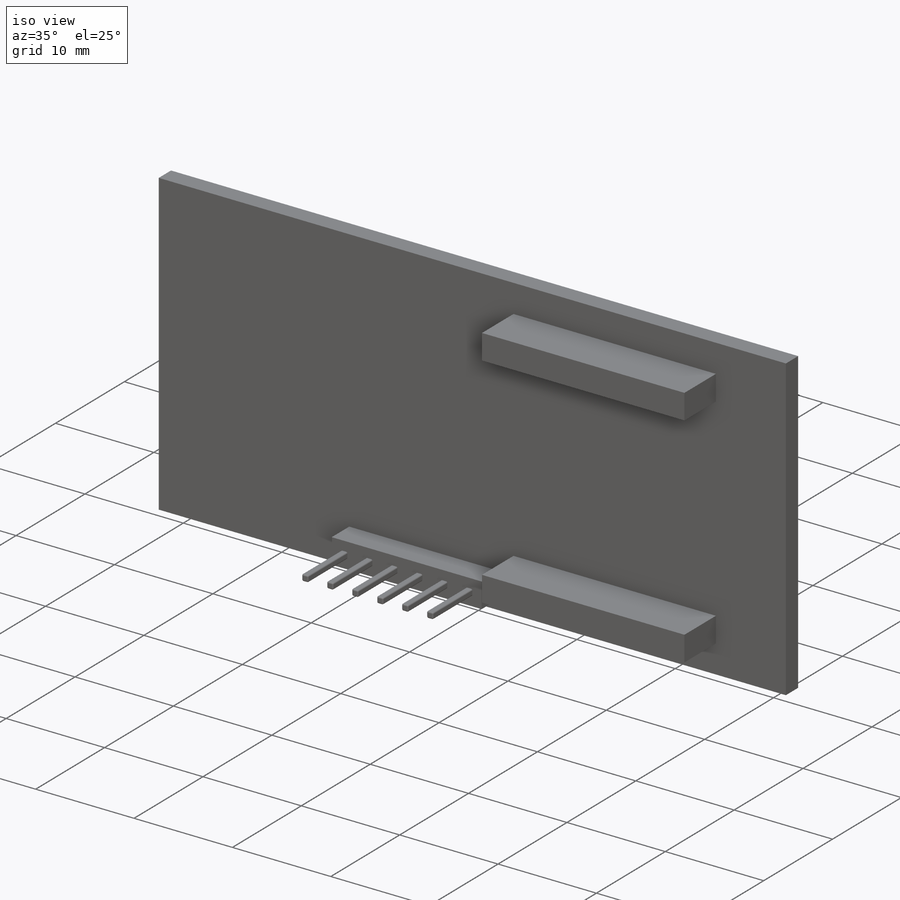
[diagram: iso view]
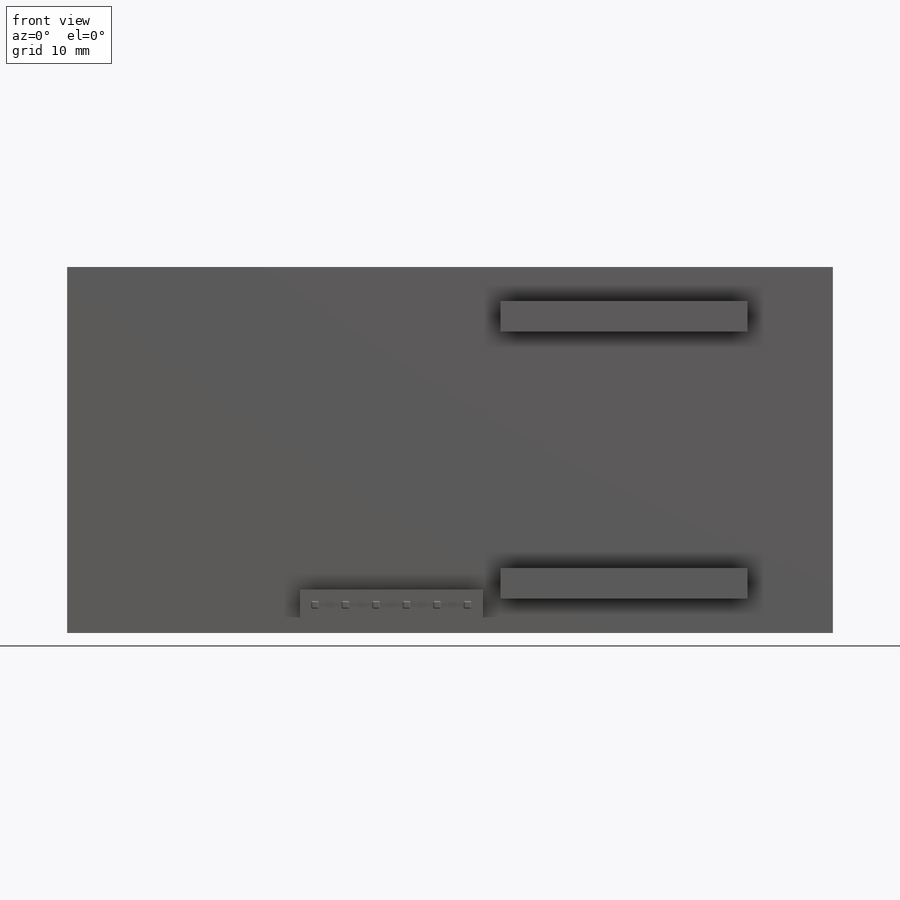
[diagram: front view]
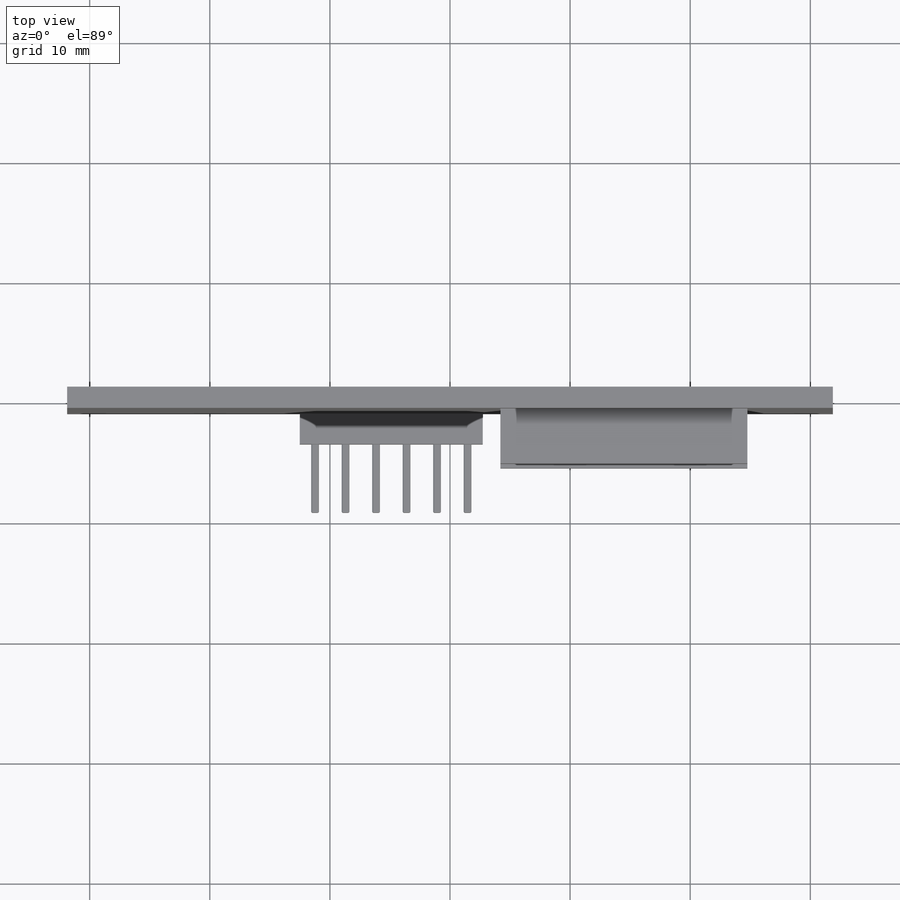
[diagram: top view]
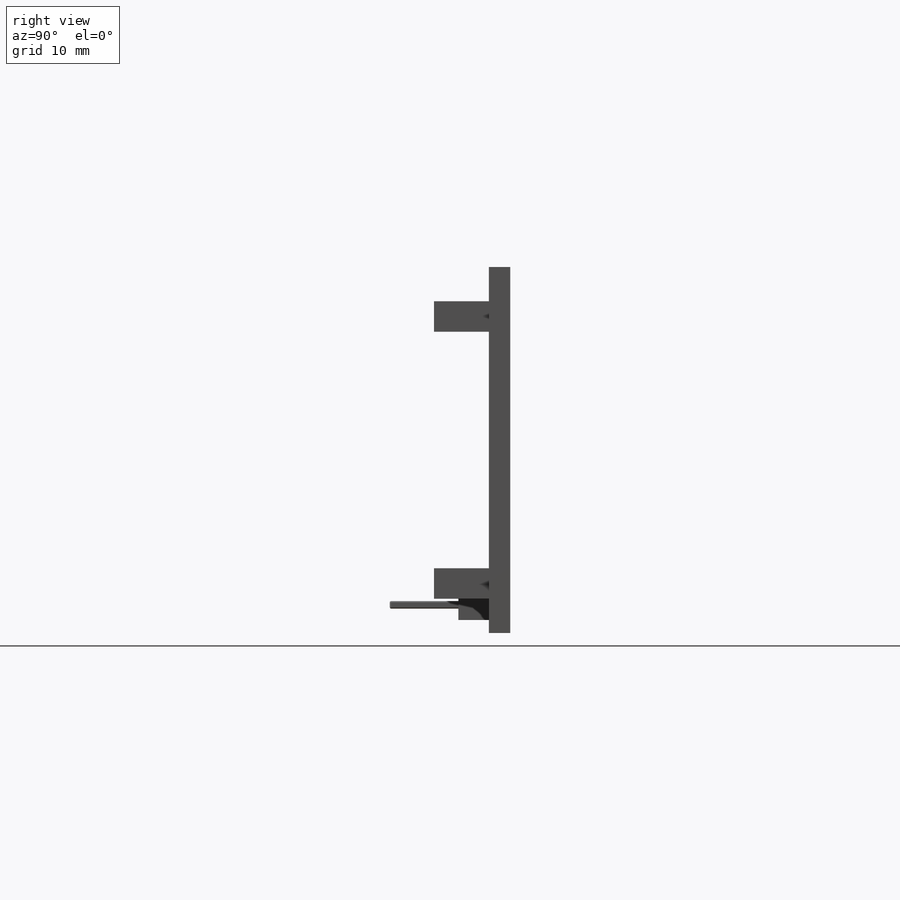
[diagram: right view]
SOLIDWORKS PART (.sldprt)
format: sldprt  version: not decoded by parser v0  size: 427,520 bytes
history: native  units: mm
features: sketch x4, extrude x4, fillet x2, material x1, mirror x1, pattern_linear x1 (+11 scaffold rows collapsed)
feature tree (24):
  scaffold x11  (default folders/planes/origin — collapsed)
  material  "miniBoard"
  sketch  "Sketch1"  dims[D1=30.48mm D2=63.754mm]
  extrude  "Boss-Extrude1"  Depth=1.778mm
  sketch  "Sketch2"  dims[D1=11.1125mm D2=20.574mm D3=7.112mm D4=2.54mm]
  extrude  "Boss-Extrude2"  Depth=4.572mm
  mirror  "Mirror1"
  sketch  "Sketch3"  dims[D1=0.635mm D2=0.635mm D3=2.032mm D4=20.32mm]
  extrude  "Boss-Extrude3"  Depth=8.255mm
  fillet  "Fillet3"  Radius=0.127mm
  fillet  "Fillet4"  Radius=0.127mm
  pattern_linear  "LPattern1"  Count1=6 Count2=1 Spacing1=2.54mm Spacing2=2.54mm
  sketch  "Sketch4"  dims[D1=2.54mm D2=15.24mm]
  extrude  "Boss-Extrude4"  Depth=2.54mm
decode coverage: 11 of 12 modeling features carry decoded parameters
note: suppression state not decoded; provenance and decode notes live in map.json
